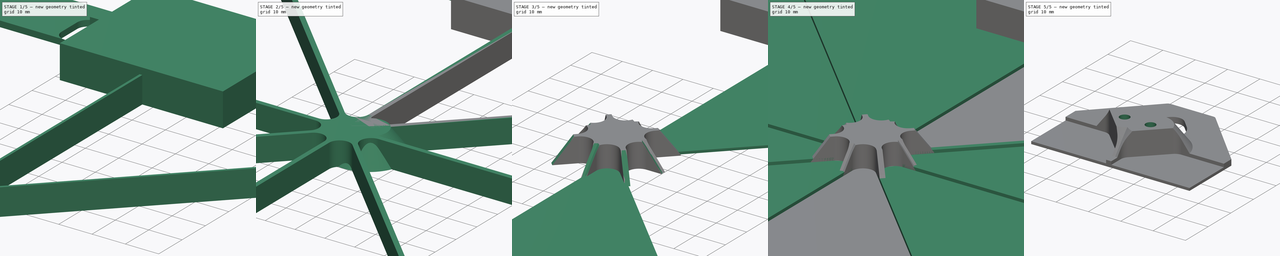
[diagram: build sequence overview — one tinted view per stage of 5, left to right]
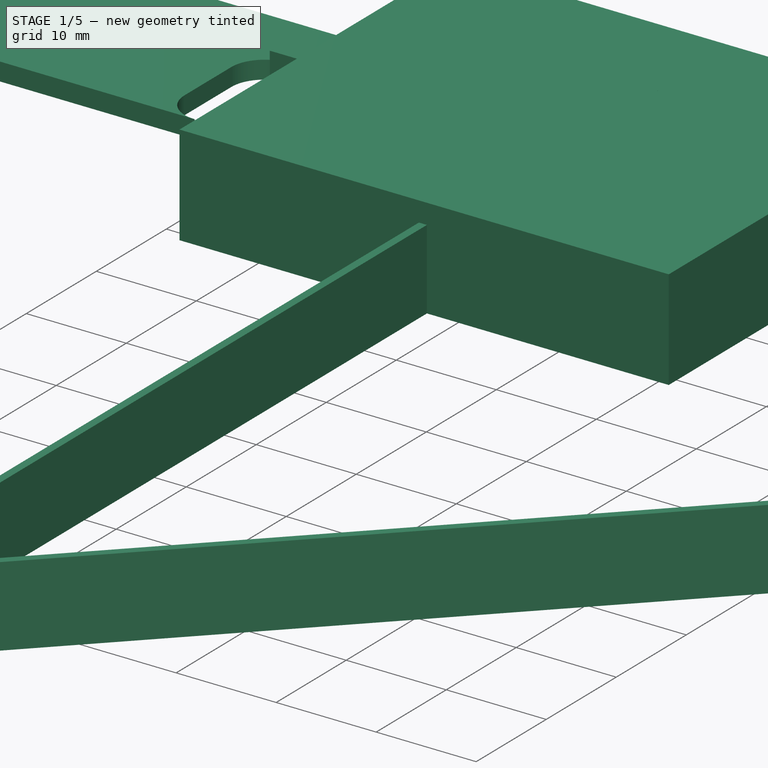
[diagram: stage 1 of 5 — iso view after this stage's code; geometry added in this stage tinted green]
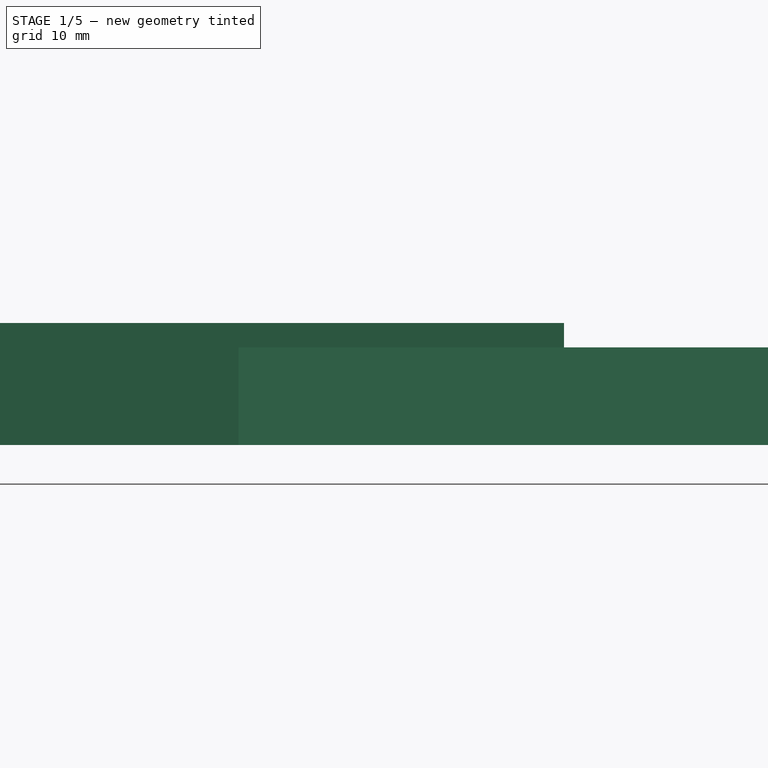
[diagram: stage 1 of 5 — front view after this stage's code; geometry added in this stage tinted green]
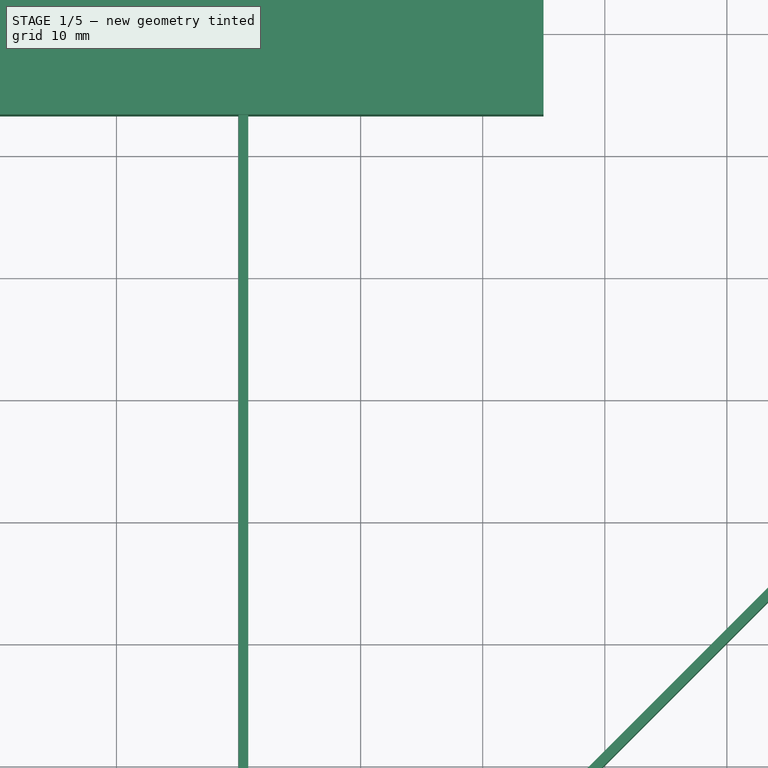
[diagram: stage 1 of 5 — top view after this stage's code; geometry added in this stage tinted green]
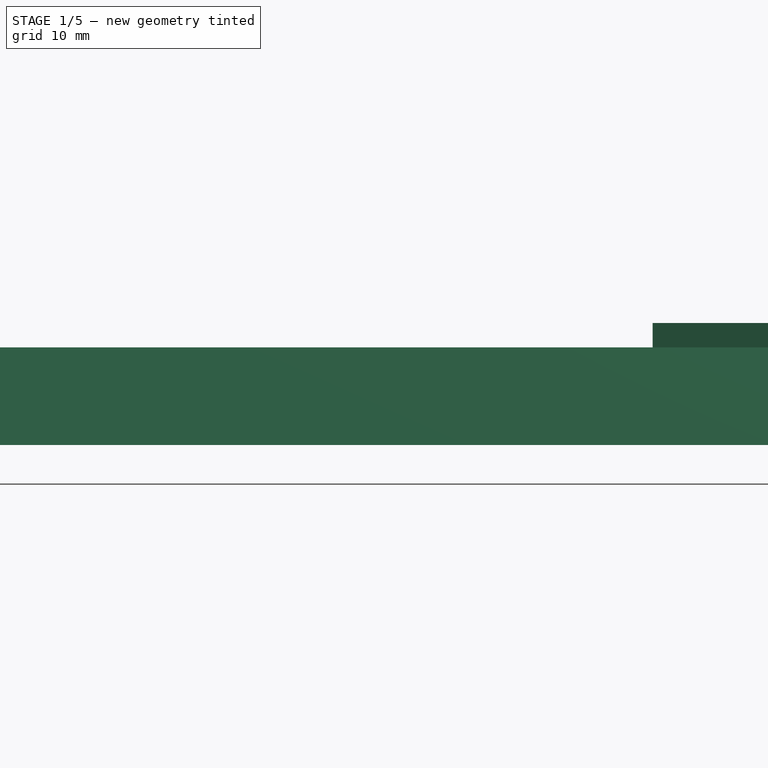
[diagram: stage 1 of 5 — right view after this stage's code; geometry added in this stage tinted green]
FCSTD DOCUMENT  (FreeCAD 0.20R29177 +426 (Git))
Label: frame_2x2
License: All rights reserved
LicenseURL: http://en.wikipedia.org/wiki/All_rights_reserved
objects: Part::FeaturePython×7, Part::Extrusion×7, Part::MultiFuse×6, Sketcher::SketchObject×5, Part::Mirroring×4, Part::MultiCommon×2, Spreadsheet::Sheet×1, Part::Cone×1, Part::Cylinder×1, Part::Fuse×1, Part::Cut×1
note: 34 computed .brp shape members not serialized (recipe doc carries the construction recipe); baked Part::Feature solids carry a one-line shape summary decoded from their .brp

FEATURE [Part::Extrusion] Extrude001
  Base = -> Sketch
  Dir = (0,0,1)
  DirMode = 2
  FaceMakerClass = Part::FaceMakerBullseye
  LengthFwd = 8
  LengthRev = 0
  Solid = true
  Symmetric = false
  expr: LengthFwd = Spreadsheet.hole_z
FEATURE [Sketcher::SketchObject] Sketch002
  FullyConstrained = false
  MapMode = 45
  expr: Constraints[6] = Spreadsheet.item_outline_y
  expr: Constraints[9] = Spreadsheet.top_hook_y
  sketch-geometry (13):
    g0: LineSegment StartX=26.6549 StartY=100 StartZ=0 EndX=7.55518 EndY=119.596 EndZ=0
    g1: LineSegment StartX=-7.55518 StartY=119.596 StartZ=0 EndX=-26.6549 EndY=100 EndZ=0
    g2: LineSegment StartX=-26.6549 StartY=100 StartZ=0 EndX=0 EndY=100 EndZ=0
    g3: LineSegment StartX=0 StartY=100 StartZ=0 EndX=26.6549 EndY=100 EndZ=0
    g4: LineSegment StartX=0 StartY=120 StartZ=0 EndX=0 EndY=100 EndZ=0
    g5: LineSegment StartX=-6.59708 StartY=120 StartZ=0 EndX=0 EndY=120 EndZ=0
    g6: LineSegment StartX=6.59708 StartY=120 StartZ=0 EndX=0 EndY=120 EndZ=0
    g7: ArcOfCircle CenterX=0 CenterY=106.5 CenterZ=0 NormalX=0 NormalY=0 NormalZ=1 AngleXU=0 Radius=6.5 StartAngle=2.36902 EndAngle=7.05576
    g8: LineSegment StartX=-4.65475 StartY=111.037 StartZ=0 EndX=-2.29464 EndY=113.458 EndZ=0
    g9: LineSegment StartX=2.29464 StartY=113.458 StartZ=0 EndX=4.65475 EndY=111.037 EndZ=0
    g10: ArcOfCircle CenterX=0 CenterY=111.222 CenterZ=0 NormalX=0 NormalY=0 NormalZ=1 AngleXU=0 Radius=3.20429 StartAngle=0.772576 EndAngle=2.36902
    g11: ArcOfCircle CenterX=-6.59708 CenterY=118.662 CenterZ=0 NormalX=0 NormalY=0 NormalZ=1 AngleXU=0 Radius=1.33791 StartAngle=1.5708 EndAngle=2.36902
    g12: ArcOfCircle CenterX=6.59708 CenterY=118.662 CenterZ=0 NormalX=0 NormalY=0 NormalZ=1 AngleXU=0 Radius=1.33791 StartAngle=0.772576 EndAngle=1.5708
  constraints (30):
    c: Coincident(g3,g0)
    c: Coincident(g1,g2)
    c: Coincident(g2,g3)
    c: Horizontal(g2)
    c: Horizontal(g3)
    c: PointOnObject(g2,g-2)
    c: DistanceY(g-1,g2) = 100
    c: Coincident(g4,g2)
    c: Vertical(g4)
    c: DistanceY(g4,g4) = 20
    c: Equal(g0,g1)
    c: Horizontal(g5)
    c: Coincident(g5,g4)
    c: Coincident(g6,g5)
    c: Horizontal(g6)
    c: Equal(g5,g6)
    c: PointOnObject(g7,g4)
    c: Diameter(g7) = 13
    c: Tangent(g7,g3)
    c: Tangent(g7,g8) = 1.5708
    c: Tangent(g9,g7) = 1.5708
    c: Tangent(g8,g10) = 1.5708
    c: Tangent(g9,g10) = 1.5708
    c: PointOnObject(g10,g4)
    c: Tangent(g1,g11) = -1.5708
    c: Tangent(g5,g11) = 1.5708
    c: Tangent(g0,g12) = -1.5708
    c: Tangent(g6,g12) = -1.5708
    c: Equal(g11,g12)
    c: Parallel(g0,g9)
FEATURE [Part::Extrusion] Extrude004  label="hook_zone"
  Base = -> Sketch002
  Dir = (0,0,1)
  DirMode = 2
  FaceMakerClass = Part::FaceMakerBullseye
  LengthFwd = 10
  LengthRev = 0
  Solid = true
  Symmetric = false
FEATURE [Sketcher::SketchObject] Sketch003
  FullyConstrained = false
  sketch-geometry (4):
    g0: LineSegment StartX=-23.9428 StartY=122.461 StartZ=0 EndX=24.9797 EndY=122.461 EndZ=0
    g1: LineSegment StartX=24.9797 StartY=122.461 StartZ=0 EndX=24.9797 EndY=83.235 EndZ=0
    g2: LineSegment StartX=24.9797 StartY=83.235 StartZ=0 EndX=-23.9428 EndY=83.235 EndZ=0
    g3: LineSegment StartX=-23.9428 StartY=83.235 StartZ=0 EndX=-23.9428 EndY=122.461 EndZ=0
  constraints (8):
    c: Coincident(g0,g1)
    c: Coincident(g1,g2)
    c: Coincident(g2,g3)
    c: Coincident(g3,g0)
    c: Horizontal(g0)
    c: Horizontal(g2)
    c: Vertical(g1)
    c: Vertical(g3)
FEATURE [Part::Extrusion] Extrude005  label="test_zone"
  Base = -> Sketch003
  Dir = (0,0,1)
  DirMode = 2
  FaceMakerClass = Part::FaceMakerBullseye
  LengthFwd = 10
  LengthRev = 0
  Solid = true
  Symmetric = false
FEATURE [Sketcher::SketchObject] Sketch004  label="cable_hook_arc"
  FullyConstrained = true
  MapMode = 45
  expr: Constraints[12] = Spreadsheet.item_outline_x / 2
  expr: Constraints[1] = Spreadsheet.top_hook_y
  expr: Constraints[24] = Spreadsheet.top_hook_y * 2 / 3
  expr: Constraints[32] = Spreadsheet.item_outline_x / 4
  expr: Constraints[33] = Spreadsheet.item_outline_x / 8
  expr: Constraints[8] = Spreadsheet.item_outline_y
  expr: Constraints[9] = Spreadsheet.item_outline_x
  sketch-geometry (12):
    g0: LineSegment StartX=-65.8333 StartY=100 StartZ=0 EndX=-50 EndY=100 EndZ=0
    g1: LineSegment StartX=-71.6667 StartY=120 StartZ=0 EndX=-50 EndY=120 EndZ=0
    g2: LineSegment StartX=0 StartY=100 StartZ=0 EndX=-100 EndY=100 EndZ=0
    g3: LineSegment StartX=-100 StartY=100 StartZ=0 EndX=-100 EndY=0 EndZ=0
    g4: LineSegment StartX=-65.8333 StartY=113.333 StartZ=0 EndX=-71.6667 EndY=113.333 EndZ=0
    g5: LineSegment StartX=-50 StartY=100 StartZ=0 EndX=-50 EndY=120 EndZ=0
    g6: ArcOfCircle CenterX=-65.8333 CenterY=110 CenterZ=0 NormalX=0 NormalY=0 NormalZ=1 AngleXU=0 Radius=3.33333 StartAngle=4e-16 EndAngle=1.5708
    g7: ArcOfCircle CenterX=-71.6667 CenterY=116.667 CenterZ=0 NormalX=0 NormalY=0 NormalZ=1 AngleXU=0 Radius=3.33333 StartAngle=1.5708 EndAngle=4.71239
    g8: ArcOfCircle CenterX=-65.8333 CenterY=103.333 CenterZ=0 NormalX=0 NormalY=0 NormalZ=1 AngleXU=0 Radius=3.33333 StartAngle=4.71239 EndAngle=6.28319
    g9: LineSegment StartX=-62.5 StartY=103.333 StartZ=0 EndX=-62.5 EndY=110 EndZ=0
    g10: LineSegment StartX=-71.6667 StartY=120 StartZ=0 EndX=-75 EndY=120 EndZ=0
    g11: LineSegment StartX=-75 StartY=120 StartZ=0 EndX=-75 EndY=100 EndZ=0
  constraints (34):
    c: Horizontal(g0)
    c: DistanceY(g0,g1) = 20
    c: Horizontal(g1)
    c: PointOnObject(g2,g-2)
    c: Horizontal(g2)
    c: Coincident(g2,g3)
    c: PointOnObject(g3,g-1)
    c: Vertical(g3)
    c: DistanceY(g3,g3) = 100
    c: DistanceX(g2,g2) = 100
    c: PointOnObject(g0,g2)
    c: Horizontal(g4)
    c: DistanceX(g0,g2) = 50
    c: Coincident(g5,g0)
    c: Coincident(g5,g1)
    c: Vertical(g5)
    c: Tangent(g9,g6) = -1.5708
    c: Tangent(g4,g6) = -1.5708
    c: Tangent(g4,g7) = 1.5708
    c: Equal(g7,g6)
    c: Vertical(g9)
    c: Tangent(g9,g8) = -1.5708
    c: Tangent(g8,g0) = -1.5708
    c: Equal(g6,g8)
    c: DistanceY(g0,g4) = 13.3333
    c: Tangent(g7,g1) = 1.5708
    c: Coincident(g10,g1)
    c: Horizontal(g10)
    c: Coincident(g11,g10)
    c: PointOnObject(g11,g2)
    c: Vertical(g11)
    c: Tangent(g11,g7)
    c: DistanceX(g10,g1) = 25
    c: DistanceX(g6,g1) = 12.5
FEATURE [Part::Extrusion] Extrude006
  Base = -> Sketch004
  Dir = (0,0,1)
  DirMode = 2
  FaceMakerClass = Part::FaceMakerBullseye
  LengthFwd = 1.8
  LengthRev = 0
  Solid = true
  Symmetric = false
  expr: LengthFwd = Spreadsheet.top_hook_thickness
FEATURE [Part::Mirroring] Part__Mirroring003  label="Extrude006 (Mirror #4)"
  Base = (-50,0,0)
  Normal = (1,0,0)
  Source = -> Extrude006
  expr: .Base.x = -Spreadsheet.item_outline_x / 2
FEATURE [Part::MultiFuse] Fusion006  label="cable_hook"
  Shapes = -> [Extrude006,Part__Mirroring003]
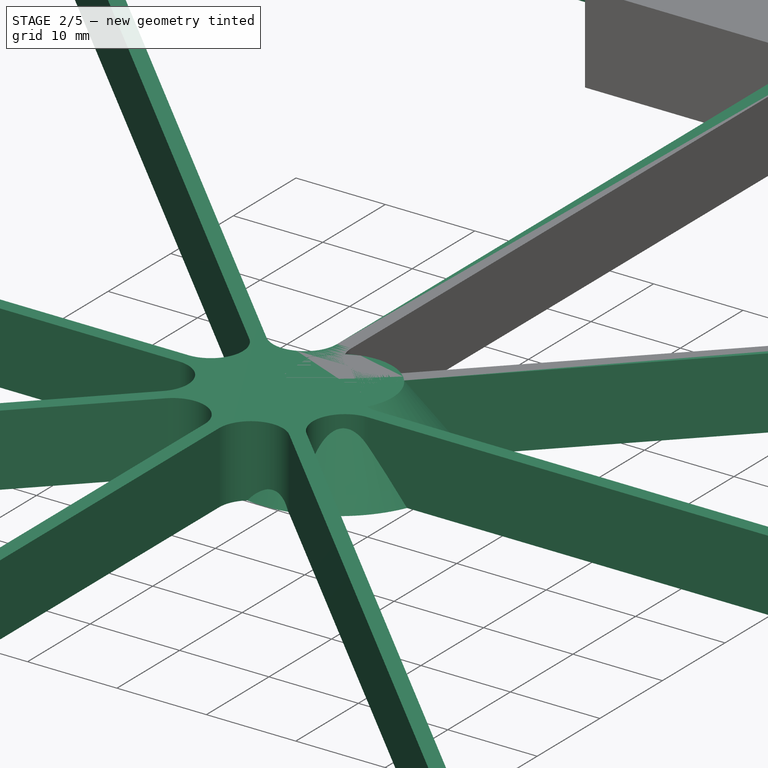
[diagram: stage 2 of 5 — iso view after this stage's code; geometry added in this stage tinted green]
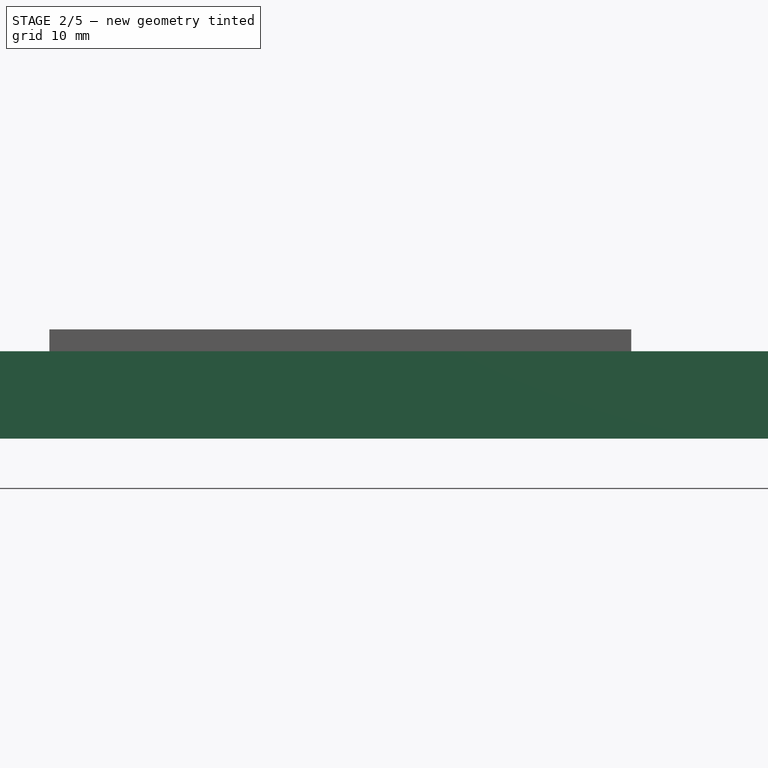
[diagram: stage 2 of 5 — front view after this stage's code; geometry added in this stage tinted green]
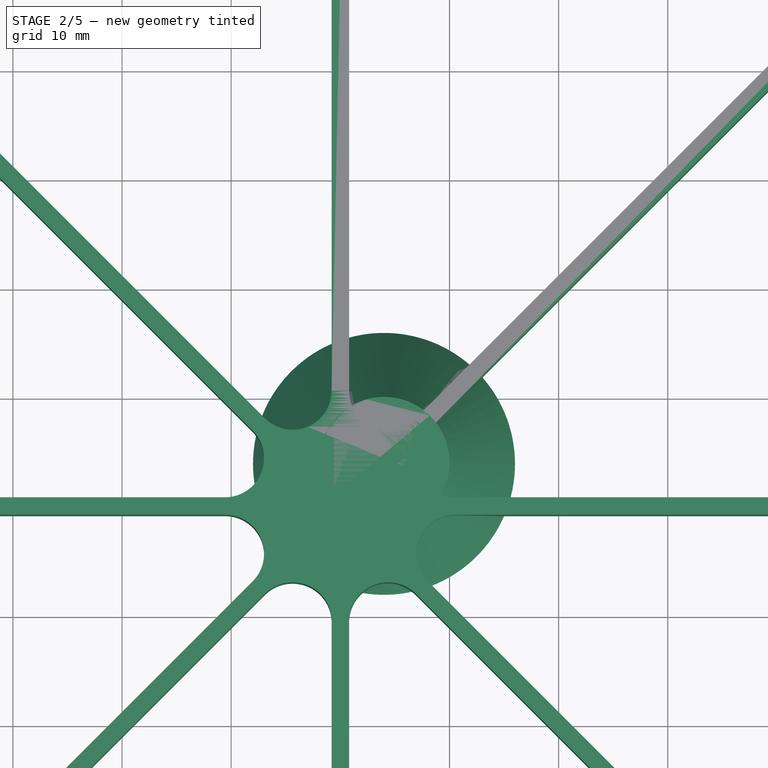
[diagram: stage 2 of 5 — top view after this stage's code; geometry added in this stage tinted green]
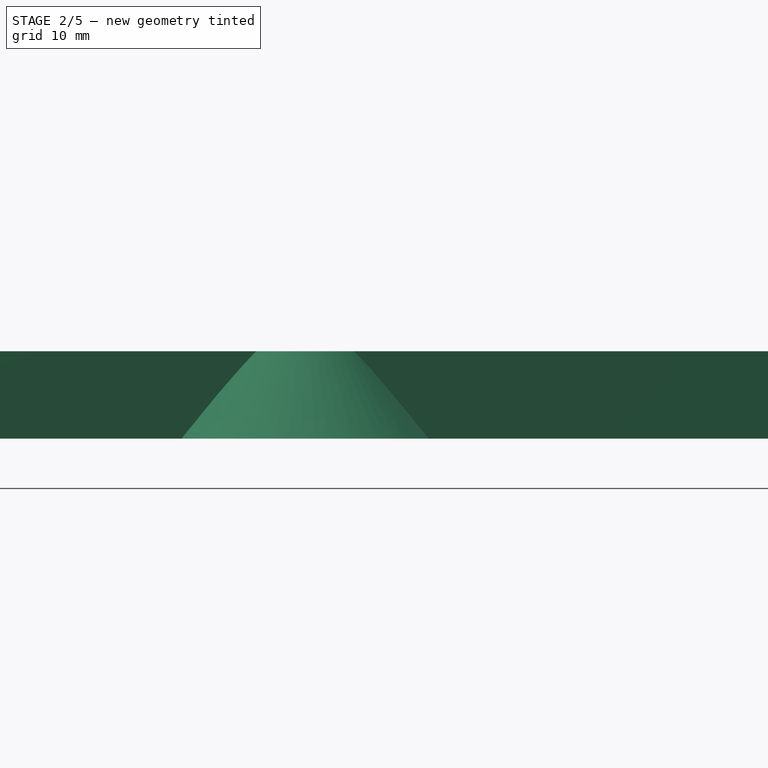
[diagram: stage 2 of 5 — right view after this stage's code; geometry added in this stage tinted green]
FEATURE [Spreadsheet::Sheet] Spreadsheet
  cells = A1=item_outline_x; B1(item_outline_x)=100; A2=item_outline_y; B2(item_outline_y)=100; A3=outline_to_hole_x; B3(outline_to_hole_x)=4; A4=outline_to_hole_y; B4(outline_to_hole_y)=4; A5=corner_r; B5(corner_r)=4; A6=bottom_plate_thickness; B6(bottom_plate_thickness)=0.8; A7=frame_height; B7(frame_height)=1; A8=frame_width; B8(frame_width)=1.6; A9=hole_2r; B9(hole_2r)=3; A10=hole_screw_head_2r; B10(hole_screw_head_2r)=6; A11=hole_z; B11(hole_z)=8; A12=top_hook_y; B12(top_hook_y)=20; A13=top_hook_hole_2r; B13(top_hook_hole_2r)=13; A14=top_hook_thickness; B14(top_hook_thickness)==bottom_plate_thickness + frame_height
FEATURE [Part::Cone] Cone  label="円錐"
  Angle = 360
  AttacherType = Attacher::AttachEngine3D
  Height = 8
  Placement = pos=(4,4,0) rot=(0,0,1;0rad)
  Radius1 = 12
  Radius2 = 6
  expr: .Placement.Base.x = Spreadsheet.outline_to_hole_x
  expr: .Placement.Base.y = Spreadsheet.outline_to_hole_y
  expr: Height = Spreadsheet.hole_z
  expr: Radius1 = Spreadsheet.hole_screw_head_2r * 2
  expr: Radius2 = Spreadsheet.hole_screw_head_2r
FEATURE [Part::FeaturePython] Array  # Draft array (typed FeaturePython)
  AlwaysSyncPlacement = false
  Angle = 360
  ArrayType = 1
  Axis = (0,0,1)
  Base = -> Cone
  Center = (50,50,0)
  Count = 4
  ExpandArray = false
  Fuse = false
  IntervalAxis = (0,0,0)
  IntervalX = (50,0,0)
  IntervalY = (0,50,0)
  IntervalZ = (0,0,50)
  NumberCircles = 3
  NumberPolar = 4
  NumberX = 2
  NumberY = 2
  NumberZ = 1
  PlacementList = 4 placements: [(4,4,0),(96,4,0),(96,96,0),(4,96,0)]
  RadialDistance = 50
  ScaleList = (4) [(1,1,1),(1,1,1),(1,1,1),(1,1,1)]
  Symmetry = 1
  TangentialDistance = 25
  expr: .Center.x = Spreadsheet.item_outline_x / 2
  expr: .Center.y = Spreadsheet.item_outline_y / 2
FEATURE [Part::Mirroring] Part__Mirroring001  label="Extrude (Mirror #1)001"
  Base = (0,0,0)
  Normal = (0,1,0)
  Source = -> Extrude001
FEATURE [Part::MultiFuse] Fusion001
  Shapes = -> [Part__Mirroring001,Extrude001]
FEATURE [Part::FeaturePython] Array005  label="frame_zone"  # Draft array (typed FeaturePython)
  AlwaysSyncPlacement = false
  Angle = 360
  ArrayType = 1
  Axis = (0,0,1)
  Base = -> Fusion001
  Center = (0,0,0)
  Count = 4
  ExpandArray = false
  Fuse = true
  IntervalAxis = (0,0,0)
  IntervalX = (50,0,0)
  IntervalY = (0,50,0)
  IntervalZ = (0,0,50)
  NumberCircles = 3
  NumberPolar = 4
  NumberX = 2
  NumberY = 2
  NumberZ = 1
  PlacementList = 4 placements: [(0,0,0),(0,0,0),(0,0,0),(0,0,0)]
  RadialDistance = 50
  ScaleList = (4) [(1,1,1),(1,1,1),(1,1,1),(1,1,1)]
  Symmetry = 1
  TangentialDistance = 25
FEATURE [Part::Fuse] Fusion004  label="zone_to_cut"
  Base = -> Array005
  Tool = -> Extrude004
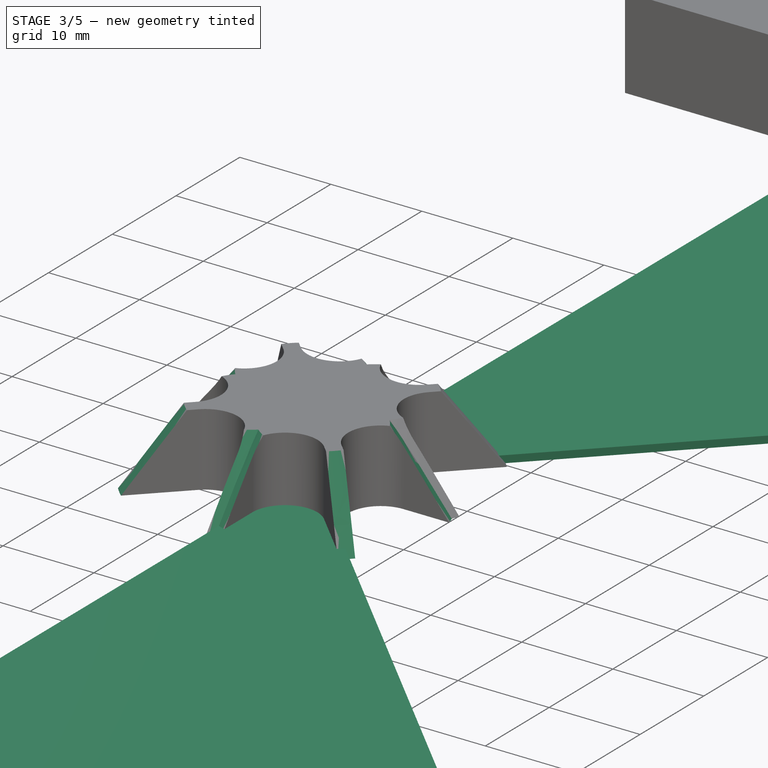
[diagram: stage 3 of 5 — iso view after this stage's code; geometry added in this stage tinted green]
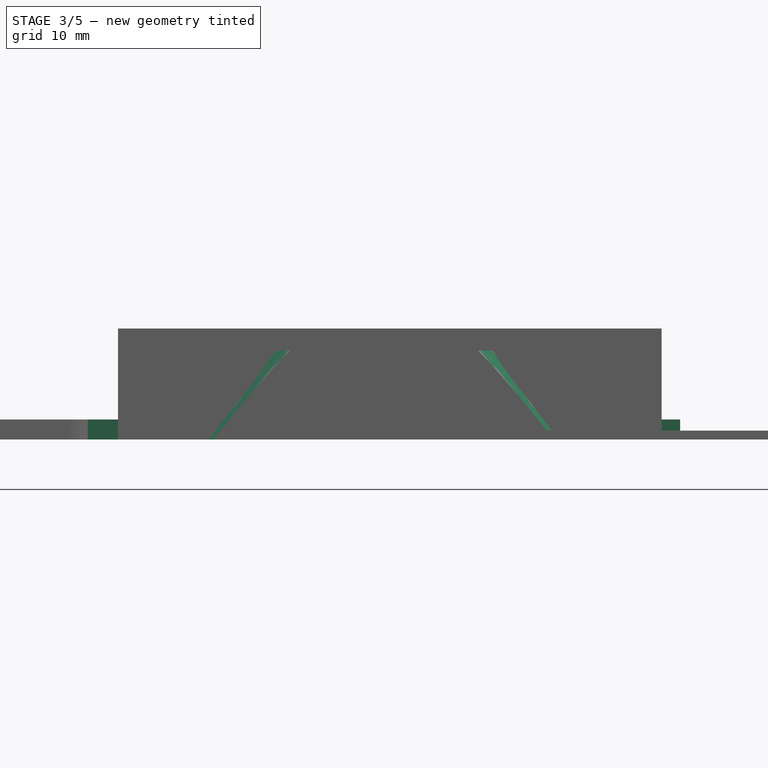
[diagram: stage 3 of 5 — front view after this stage's code; geometry added in this stage tinted green]
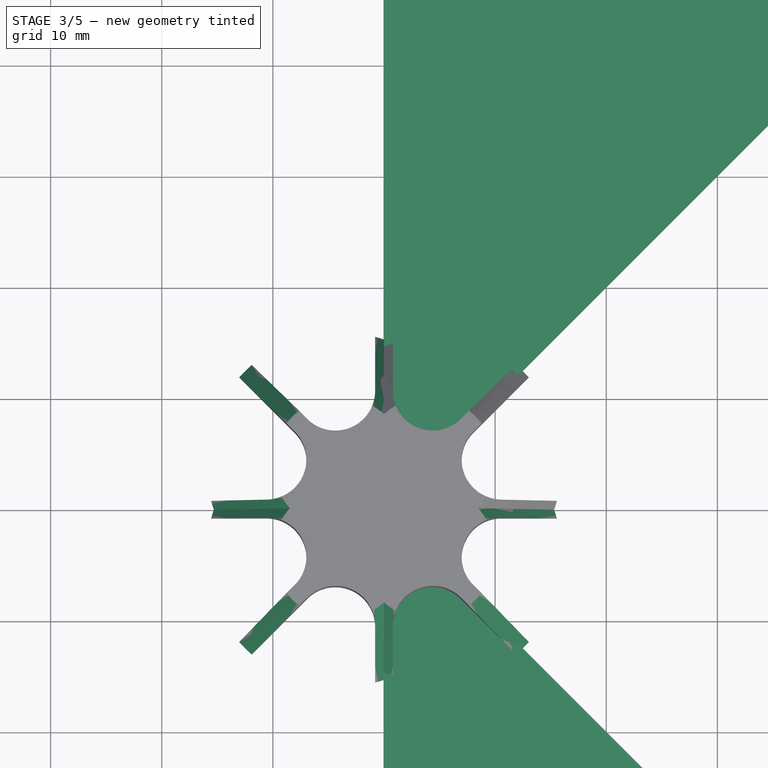
[diagram: stage 3 of 5 — top view after this stage's code; geometry added in this stage tinted green]
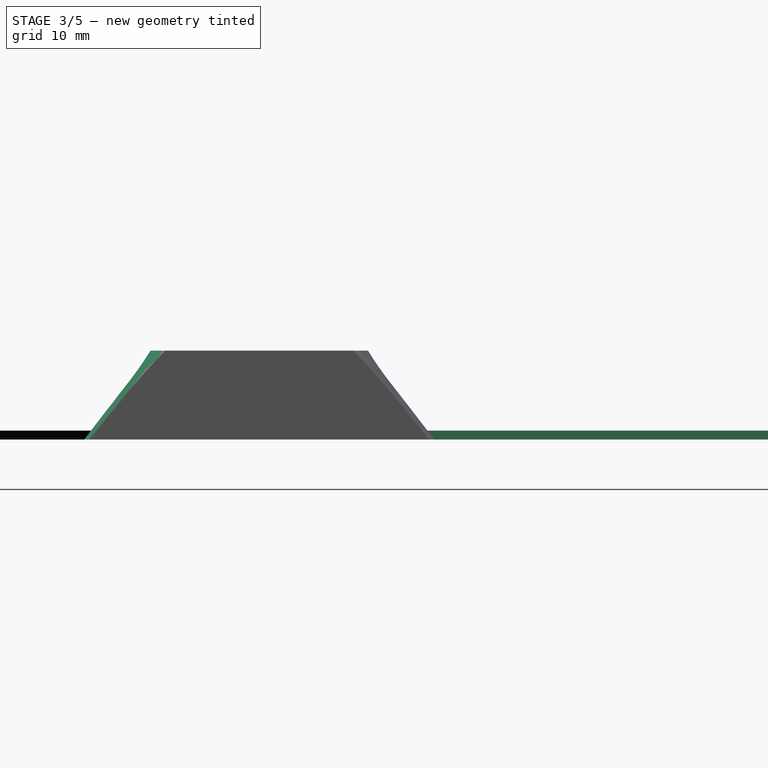
[diagram: stage 3 of 5 — right view after this stage's code; geometry added in this stage tinted green]
FEATURE [Part::FeaturePython] Array003  label="mounts"  # Draft array (typed FeaturePython)
  AlwaysSyncPlacement = false
  Angle = 360
  ArrayType = 1
  Axis = (0,0,1)
  Base = -> Array
  Center = (0,0,0)
  Count = 4
  ExpandArray = false
  Fuse = true
  IntervalAxis = (0,0,0)
  IntervalX = (50,0,0)
  IntervalY = (0,50,0)
  IntervalZ = (0,0,50)
  NumberCircles = 3
  NumberPolar = 4
  NumberX = 2
  NumberY = 2
  NumberZ = 1
  PlacementList = 4 placements: [(0,0,0),(0,0,0),(0,0,0),(0,0,0)]
  RadialDistance = 50
  ScaleList = (4) [(1,1,1),(1,1,1),(1,1,1),(1,1,1)]
  Symmetry = 1
  TangentialDistance = 25
FEATURE [Sketcher::SketchObject] Sketch001
  FullyConstrained = false
  expr: Constraints[11] = Spreadsheet.corner_r
  expr: Constraints[12] = Spreadsheet.item_outline_x
  expr: Constraints[13] = Spreadsheet.item_outline_y
  expr: Constraints[14] = Spreadsheet.outline_to_hole_x
  expr: Constraints[15] = Spreadsheet.outline_to_hole_y
  expr: Constraints[16] = Spreadsheet.hole_screw_head_2r
  expr: Constraints[34] = Spreadsheet.outline_to_hole_x
  expr: Constraints[35] = Spreadsheet.outline_to_hole_y
  expr: Constraints[43] = Spreadsheet.frame_width / 2
  expr: Constraints[44] = Spreadsheet.frame_width
  sketch-geometry (20):
    g0: LineSegment StartX=0 StartY=100 StartZ=0 EndX=96 EndY=100 EndZ=0
    g1: LineSegment StartX=100 StartY=96 StartZ=0 EndX=100 EndY=0 EndZ=0
    g2: LineSegment StartX=100 StartY=0 StartZ=0 EndX=0 EndY=0 EndZ=0
    g3: LineSegment StartX=0 StartY=0 StartZ=0 EndX=0 EndY=100 EndZ=0
    g4: ArcOfCircle CenterX=96 CenterY=96 CenterZ=0 NormalX=0 NormalY=0 NormalZ=1 AngleXU=0 Radius=4 StartAngle=9e-16 EndAngle=1.5708
    g5: Circle CenterX=4 CenterY=96 CenterZ=0 NormalX=0 NormalY=0 NormalZ=1 AngleXU=0 Radius=3
    g6: Circle CenterX=96 CenterY=96 CenterZ=0 NormalX=0 NormalY=0 NormalZ=1 AngleXU=0 Radius=3
    g7: Circle CenterX=96 CenterY=4 CenterZ=0 NormalX=0 NormalY=0 NormalZ=1 AngleXU=0 Radius=3
    g8: Circle CenterX=4 CenterY=4 CenterZ=0 NormalX=0 NormalY=0 NormalZ=1 AngleXU=0 Radius=3
    g9: LineSegment StartX=4 StartY=96 StartZ=0 EndX=96 EndY=96 EndZ=0
    g10: LineSegment StartX=96 StartY=96 StartZ=0 EndX=96 EndY=4 EndZ=0
    g11: LineSegment StartX=96 StartY=4 StartZ=0 EndX=4 EndY=4 EndZ=0
    g12: LineSegment StartX=4 StartY=4 StartZ=0 EndX=4 EndY=96 EndZ=0
    g13: LineSegment StartX=4 StartY=4 StartZ=0 EndX=96 EndY=96 EndZ=0
    g14: LineSegment StartX=92.1519 StartY=93.2833 StartZ=0 EndX=92.7176 EndY=92.7176 EndZ=0
    g15: LineSegment StartX=0.8 StartY=87.3147 StartZ=0 EndX=0 EndY=87.3147 EndZ=0
    g16: LineSegment StartX=90.0325 StartY=98.4 StartZ=0 EndX=90.0325 EndY=100 EndZ=0
    g17: LineSegment StartX=96 StartY=96 StartZ=0 EndX=98.8284 EndY=98.8284 EndZ=0
    g18: LineSegment StartX=0 StartY=0 StartZ=0 EndX=4 EndY=4 EndZ=0
    g19: ArcOfCircle CenterX=96 CenterY=96 CenterZ=0 NormalX=0 NormalY=0 NormalZ=1 AngleXU=0 Radius=4 StartAngle=0.785398 EndAngle=1.5708
  constraints (52):
    c: Coincident(g1,g2)
    c: Coincident(g2,g3)
    c: Coincident(g3,g0)
    c: Horizontal(g0)
    c: Horizontal(g2)
    c: Vertical(g1)
    c: Vertical(g3)
    c: PointOnObject(g0,g-2)
    c: PointOnObject(g1,g-1)
    c: Tangent(g0,g4) = 1.5708
    c: Tangent(g1,g4) = 1.5708
    c: Radius(g4) = 4
    c: DistanceX(g2,g2) = 100
    c: DistanceY(g3,g3) = 100
    c: DistanceX(g8) = 4
    c: DistanceY(g8) = 4
    c: Diameter(g8) = 6
    c: Equal(g5,g8)
    c: Equal(g8,g7)
    c: Equal(g8,g6)
    c: Coincident(g9,g10)
    c: Coincident(g10,g11)
    c: Coincident(g11,g12)
    c: Coincident(g12,g9)
    c: Horizontal(g9)
    c: Horizontal(g11)
    c: Vertical(g10)
    c: Vertical(g12)
    c: Coincident(g9,g5)
    c: Coincident(g10,g7)
    c: Coincident(g6,g9)
    c: Coincident(g11,g8)
    c: Coincident(g13,g8)
    c: Coincident(g13,g6)
    c: DistanceX(g7,g1) = 4
    c: DistanceY(g5,g0) = 4
    c: PointOnObject(g14,g13)
    c: Perpendicular(g13,g14)
    c: PointOnObject(g15,g3)
    c: Horizontal(g15)
    c: PointOnObject(g16,g0)
    c: Vertical(g16)
    c: Equal(g15,g14)
    c: DistanceX(g15,g15) = 0.8
    c: DistanceY(g16,g16) = 1.6
    c: Coincident(g17,g4)
    c: Parallel(g17,g13)
    c: Coincident(g18,g2)
    c: Coincident(g18,g8)
    c: Coincident(g19,g13)
    c: Coincident(g19,g17)
    c: Coincident(g19,g0)
FEATURE [Part::Extrusion] Extrude002
  Base = -> Sketch001
  Dir = (0,0,1)
  DirMode = 2
  FaceMakerClass = Part::FaceMakerBullseye
  LengthFwd = 0.8
  LengthRev = 0
  Solid = true
  Symmetric = false
  expr: LengthFwd = Spreadsheet.bottom_plate_thickness
FEATURE [Part::Mirroring] Part__Mirroring002  label="Extrude (Mirror #1)002"
  Base = (0,0,0)
  Normal = (0,1,0)
  Source = -> Extrude002
FEATURE [Part::MultiFuse] Fusion003
  Shapes = -> [Part__Mirroring002,Extrude002]
FEATURE [Part::Extrusion] Extrude003  label="top_hook"
  Base = -> Sketch002
  Dir = (0,0,1)
  DirMode = 2
  FaceMakerClass = Part::FaceMakerBullseye
  LengthFwd = 1.8
  LengthRev = 0
  Solid = true
  Symmetric = false
  expr: LengthFwd = Spreadsheet.top_hook_thickness
FEATURE [Part::MultiCommon] Common001  label="mounts_aligned_for_frame"
  Shapes = -> [Array003,Fusion004]
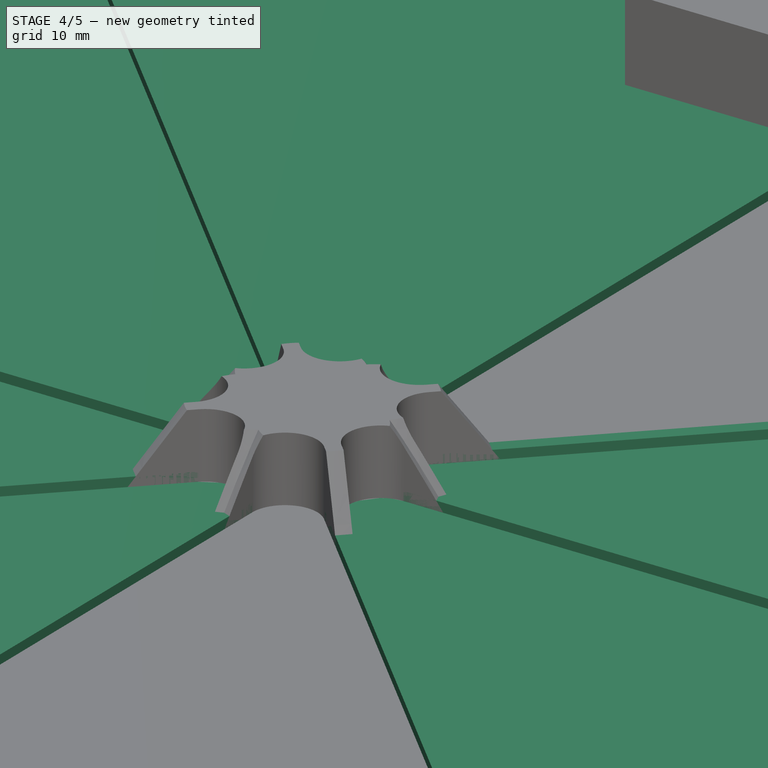
[diagram: stage 4 of 5 — iso view after this stage's code; geometry added in this stage tinted green]
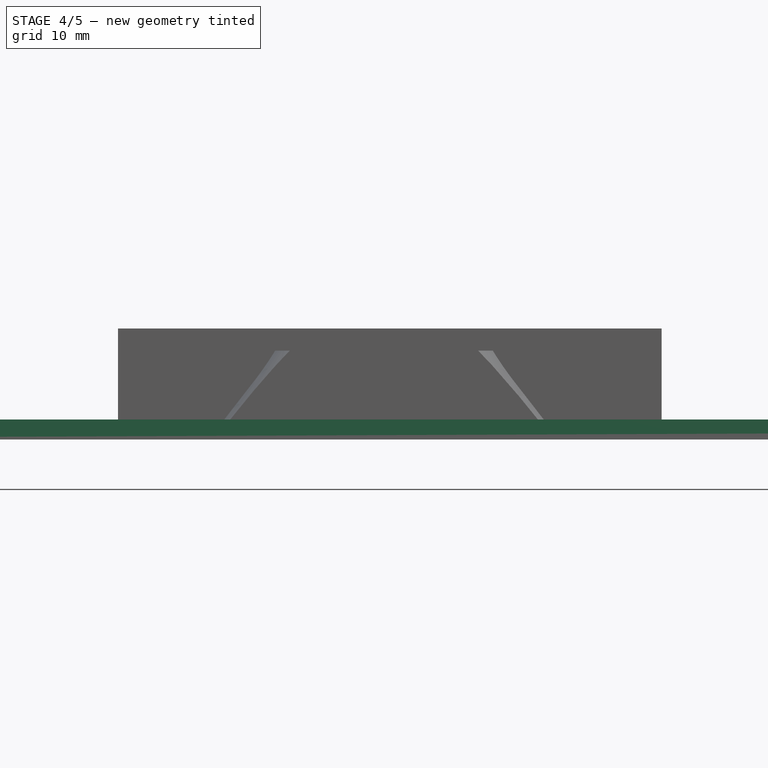
[diagram: stage 4 of 5 — front view after this stage's code; geometry added in this stage tinted green]
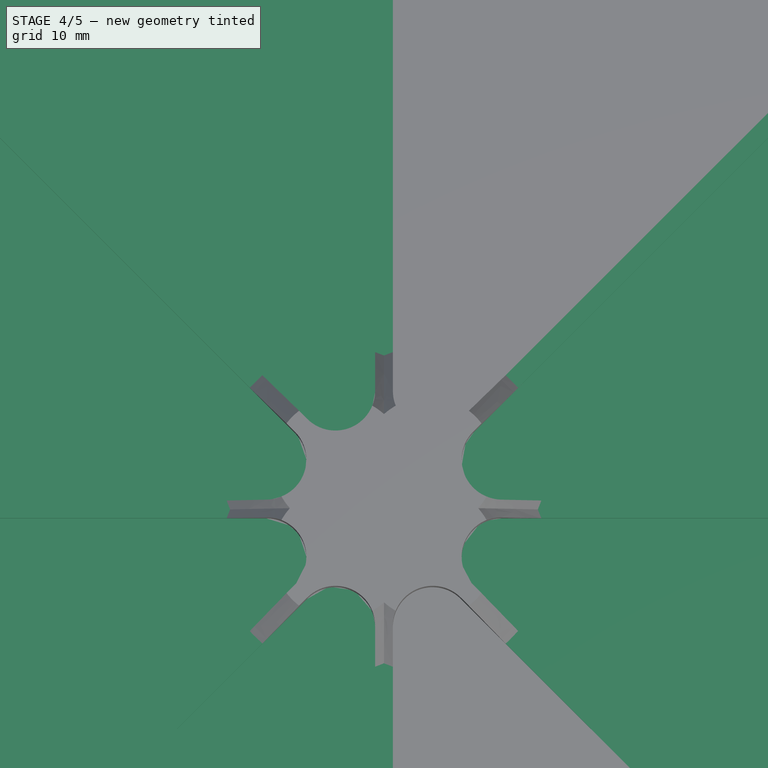
[diagram: stage 4 of 5 — top view after this stage's code; geometry added in this stage tinted green]
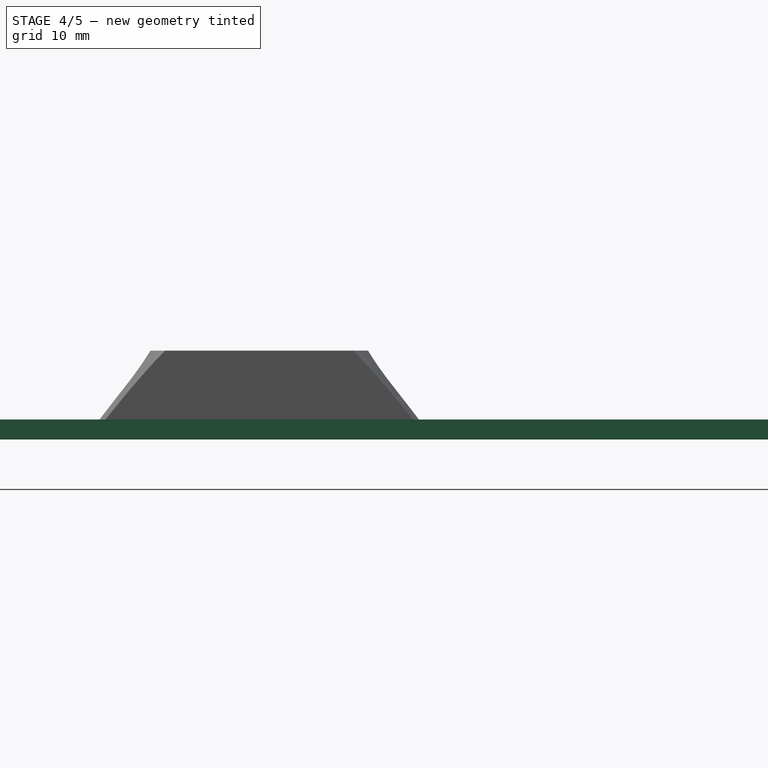
[diagram: stage 4 of 5 — right view after this stage's code; geometry added in this stage tinted green]
FEATURE [Sketcher::SketchObject] Sketch
  FullyConstrained = true
  expr: Constraints[11] = Spreadsheet.corner_r
  expr: Constraints[12] = Spreadsheet.item_outline_x
  expr: Constraints[13] = Spreadsheet.item_outline_y
  expr: Constraints[16] = Spreadsheet.outline_to_hole_x
  expr: Constraints[17] = Spreadsheet.outline_to_hole_y
  expr: Constraints[18] = Spreadsheet.hole_screw_head_2r
  expr: Constraints[36] = Spreadsheet.outline_to_hole_x
  expr: Constraints[37] = Spreadsheet.outline_to_hole_y
  expr: Constraints[52] = Spreadsheet.frame_width / 2
  expr: Constraints[53] = Spreadsheet.frame_width
  sketch-geometry (28):
    g0: LineSegment StartX=0 StartY=100 StartZ=0 EndX=96 EndY=100 EndZ=0
    g1: LineSegment StartX=100 StartY=96 StartZ=0 EndX=100 EndY=0 EndZ=0
    g2: LineSegment StartX=100 StartY=0 StartZ=0 EndX=0 EndY=0 EndZ=0
    g3: LineSegment StartX=0 StartY=0 StartZ=0 EndX=0 EndY=100 EndZ=0
    g4: ArcOfCircle CenterX=96 CenterY=96 CenterZ=0 NormalX=0 NormalY=0 NormalZ=1 AngleXU=0 Radius=4 StartAngle=9e-16 EndAngle=1.5708
    g5: LineSegment StartX=0.8 StartY=10.5657 StartZ=0 EndX=0.8 EndY=87.3147 EndZ=0
    g6: LineSegment StartX=11.8853 StartY=98.4 StartZ=0 EndX=90.0325 EndY=98.4 EndZ=0
    g7: LineSegment StartX=6.90536 StartY=8.03673 StartZ=0 EndX=92.1519 EndY=93.2833 EndZ=0
    g8: Circle CenterX=4 CenterY=96 CenterZ=0 NormalX=0 NormalY=0 NormalZ=1 AngleXU=0 Radius=3
    g9: Circle CenterX=96 CenterY=96 CenterZ=0 NormalX=0 NormalY=0 NormalZ=1 AngleXU=0 Radius=3
    g10: Circle CenterX=96 CenterY=4 CenterZ=0 NormalX=0 NormalY=0 NormalZ=1 AngleXU=0 Radius=3
    g11: Circle CenterX=4 CenterY=4 CenterZ=0 NormalX=0 NormalY=0 NormalZ=1 AngleXU=0 Radius=3
    g12: LineSegment StartX=4 StartY=96 StartZ=0 EndX=96 EndY=96 EndZ=0
    g13: LineSegment StartX=96 StartY=96 StartZ=0 EndX=96 EndY=4 EndZ=0
    g14: LineSegment StartX=96 StartY=4 StartZ=0 EndX=4 EndY=4 EndZ=0
    g15: LineSegment StartX=4 StartY=4 StartZ=0 EndX=4 EndY=96 EndZ=0
    g16: LineSegment StartX=4 StartY=4 StartZ=0 EndX=96 EndY=96 EndZ=0
    g17: LineSegment StartX=92.1519 StartY=93.2833 StartZ=0 EndX=92.7176 EndY=92.7176 EndZ=0
    g18: ArcOfCircle CenterX=4.37644 CenterY=10.5657 CenterZ=0 NormalX=0 NormalY=0 NormalZ=1 AngleXU=0 Radius=3.57644 StartAngle=3.14159 EndAngle=5.49779
    g19: ArcOfCircle CenterX=90.0325 CenterY=95.4027 CenterZ=0 NormalX=0 NormalY=0 NormalZ=1 AngleXU=0 Radius=2.99729 StartAngle=5.49779 EndAngle=7.85398
    g20: LineSegment StartX=0.8 StartY=87.3147 StartZ=0 EndX=0 EndY=87.3147 EndZ=0
    g21: LineSegment StartX=90.0325 StartY=98.4 StartZ=0 EndX=90.0325 EndY=100 EndZ=0
    g22: LineSegment StartX=9.76396 StartY=97.5213 StartZ=0 EndX=1.67868 EndY=89.436 EndZ=0
    g23: ArcOfCircle CenterX=11.8853 CenterY=95.4 CenterZ=0 NormalX=0 NormalY=0 NormalZ=1 AngleXU=0 Radius=3 StartAngle=1.5708 EndAngle=2.35619
    g24: ArcOfCircle CenterX=3.8 CenterY=87.3147 CenterZ=0 NormalX=0 NormalY=0 NormalZ=1 AngleXU=0 Radius=3 StartAngle=2.35619 EndAngle=3.14159
    g25: LineSegment StartX=96 StartY=96 StartZ=0 EndX=98.8284 EndY=98.8284 EndZ=0
    g26: LineSegment StartX=0 StartY=0 StartZ=0 EndX=4 EndY=4 EndZ=0
    g27: ArcOfCircle CenterX=96 CenterY=96 CenterZ=0 NormalX=0 NormalY=0 NormalZ=1 AngleXU=0 Radius=4 StartAngle=0.785398 EndAngle=1.5708
  constraints (72):
    c: Coincident(g1,g2)
    c: Coincident(g2,g3)
    c: Coincident(g3,g0)
    c: Horizontal(g0)
    c: Horizontal(g2)
    c: Vertical(g1)
    c: Vertical(g3)
    c: PointOnObject(g0,g-2)
    c: PointOnObject(g1,g-1)
    c: Tangent(g0,g4) = 1.5708
    c: Tangent(g1,g4) = 1.5708
    c: Radius(g4) = 4
    c: DistanceX(g2,g2) = 100
    c: DistanceY(g3,g3) = 100
    c: Vertical(g5)
    c: Horizontal(g6)
    c: DistanceX(g11) = 4
    c: DistanceY(g11) = 4
    c: Diameter(g11) = 6
    c: Equal(g8,g11)
    c: Equal(g11,g10)
    c: Equal(g11,g9)
    c: Coincident(g12,g13)
    c: Coincident(g13,g14)
    c: Coincident(g14,g15)
    c: Coincident(g15,g12)
    c: Horizontal(g12)
    c: Horizontal(g14)
    c: Vertical(g13)
    c: Vertical(g15)
    c: Coincident(g12,g8)
    c: Coincident(g13,g10)
    c: Coincident(g9,g12)
    c: Coincident(g14,g11)
    c: Coincident(g16,g11)
    c: Coincident(g16,g9)
    c: DistanceX(g10,g1) = 4
    c: DistanceY(g8,g0) = 4
    c: Parallel(g7,g16)
    c: PointOnObject(g17,g16)
    c: Tangent(g5,g18) = 1.5708
    c: Tangent(g7,g18) = -1.5708
    c: Tangent(g6,g19) = 1.5708
    c: Tangent(g7,g19) = -1.5708
    c: Coincident(g17,g7)
    c: Perpendicular(g16,g17)
    c: PointOnObject(g20,g3)
    c: Horizontal(g20)
    c: Coincident(g21,g6)
    c: PointOnObject(g21,g0)
    c: Vertical(g21)
    c: Equal(g20,g17)
    c: DistanceX(g20,g20) = 0.8
    c: DistanceY(g21,g21) = 1.6
    c: Tangent(g6,g23) = 1.5708
    c: Tangent(g22,g23) = -1.5708
    c: Tangent(g5,g24) = 1.5708
    c: Tangent(g22,g24) = -1.5708
    c: Coincident(g20,g5)
    c: Equal(g24,g23)
    c: Equal(g23,g8)
    c: Angle(g22,g0) = 2.35619
    c: Tangent(g8,g22)
    c: Coincident(g25,g4)
    c: Parallel(g25,g16)
    c: Coincident(g26,g2)
    c: Coincident(g26,g11)
    c: Coincident(g27,g16)
    c: Coincident(g27,g25)
    c: Coincident(g27,g0)
    c: Tangent(g11,g18)
    c: Tangent(g9,g19)
FEATURE [Part::Extrusion] Extrude
  Base = -> Sketch
  Dir = (0,0,1)
  DirMode = 2
  FaceMakerClass = Part::FaceMakerBullseye
  LengthFwd = 1
  LengthRev = 0
  Placement = pos=(0,0,0.8) rot=(0,0,1;0rad)
  Solid = true
  Symmetric = false
  expr: .Placement.Base.z = Spreadsheet.bottom_plate_thickness
  expr: LengthFwd = Spreadsheet.frame_height
FEATURE [Part::Mirroring] Part__Mirroring  label="Extrude (Mirror #1)"
  Base = (0,0,0)
  Normal = (0,1,0)
  Source = -> Extrude
FEATURE [Part::MultiFuse] Fusion
  Shapes = -> [Part__Mirroring,Extrude]
FEATURE [Part::FeaturePython] Array002  label="frame"  # Draft array (typed FeaturePython)
  AlwaysSyncPlacement = false
  Angle = 360
  ArrayType = 1
  Axis = (0,0,1)
  Base = -> Fusion
  Center = (0,0,0)
  Count = 4
  ExpandArray = false
  Fuse = true
  IntervalAxis = (0,0,0)
  IntervalX = (50,0,0)
  IntervalY = (0,50,0)
  IntervalZ = (0,0,50)
  NumberCircles = 3
  NumberPolar = 4
  NumberX = 2
  NumberY = 2
  NumberZ = 1
  PlacementList = 4 placements: [(0,0,0),(0,0,0),(0,0,0),(0,0,0)]
  RadialDistance = 50
  ScaleList = (4) [(1,1,1),(1,1,1),(1,1,1),(1,1,1)]
  Symmetry = 1
  TangentialDistance = 25
FEATURE [Part::FeaturePython] Array006  label="bottom_plate"  # Draft array (typed FeaturePython)
  AlwaysSyncPlacement = false
  Angle = 360
  ArrayType = 1
  Axis = (0,0,1)
  Base = -> Fusion003
  Center = (0,0,0)
  Count = 4
  ExpandArray = false
  Fuse = true
  IntervalAxis = (0,0,0)
  IntervalX = (50,0,0)
  IntervalY = (0,50,0)
  IntervalZ = (0,0,50)
  NumberCircles = 3
  NumberPolar = 4
  NumberX = 2
  NumberY = 2
  NumberZ = 1
  PlacementList = 4 placements: [(0,0,0),(0,0,0),(0,0,0),(0,0,0)]
  RadialDistance = 50
  ScaleList = (4) [(1,1,1),(1,1,1),(1,1,1),(1,1,1)]
  Symmetry = 1
  TangentialDistance = 25
FEATURE [Part::MultiFuse] Fusion002
  Shapes = -> [Array002,Array006]
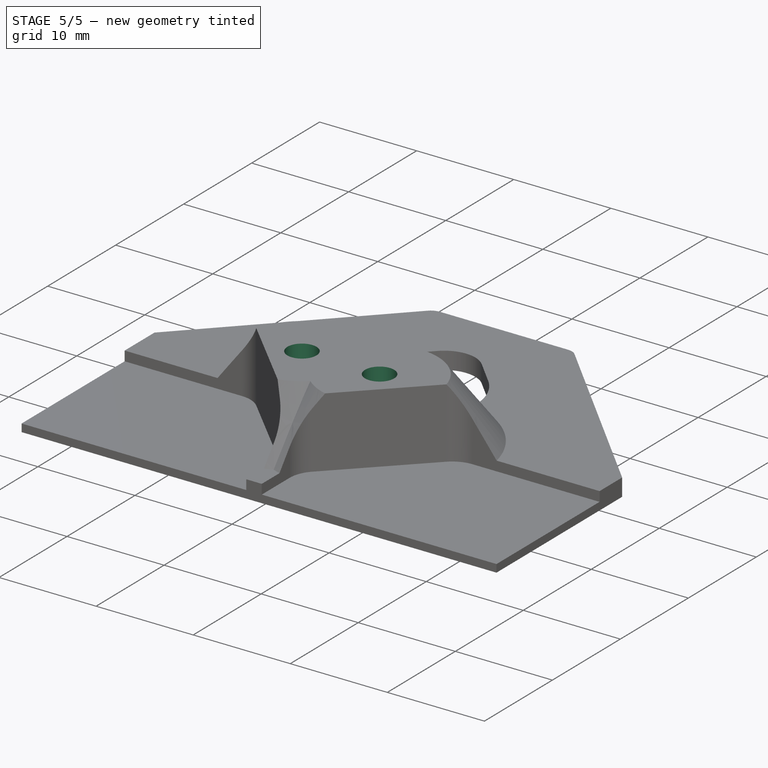
[diagram: stage 5 of 5 — iso view after this stage's code; geometry added in this stage tinted green]
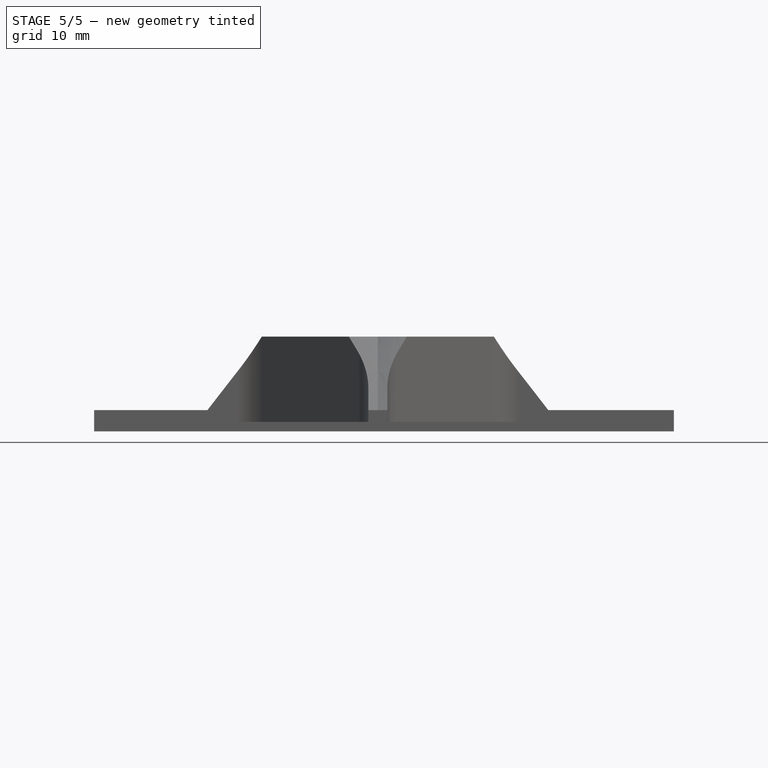
[diagram: stage 5 of 5 — front view after this stage's code; geometry added in this stage tinted green]
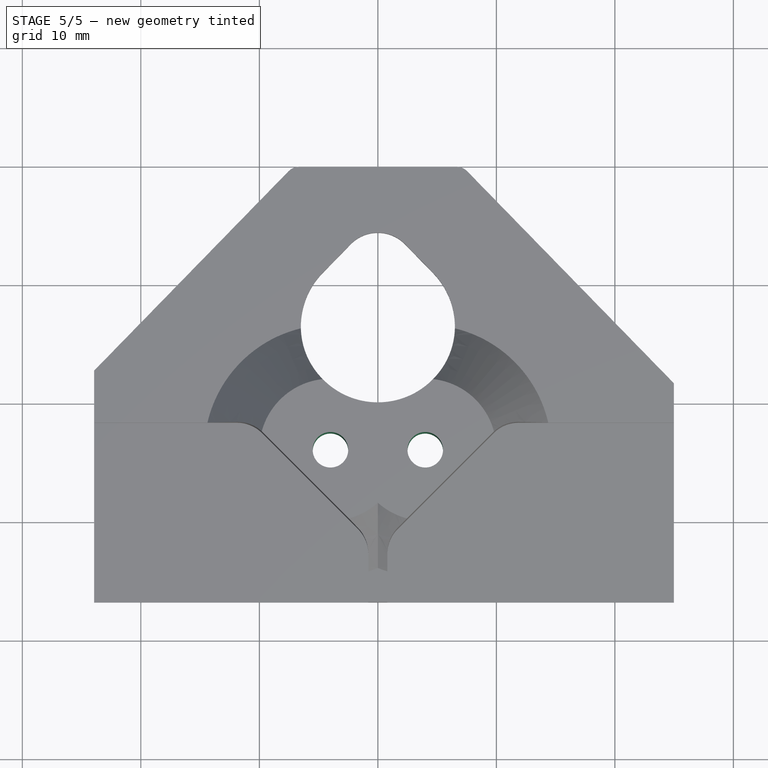
[diagram: stage 5 of 5 — top view after this stage's code; geometry added in this stage tinted green]
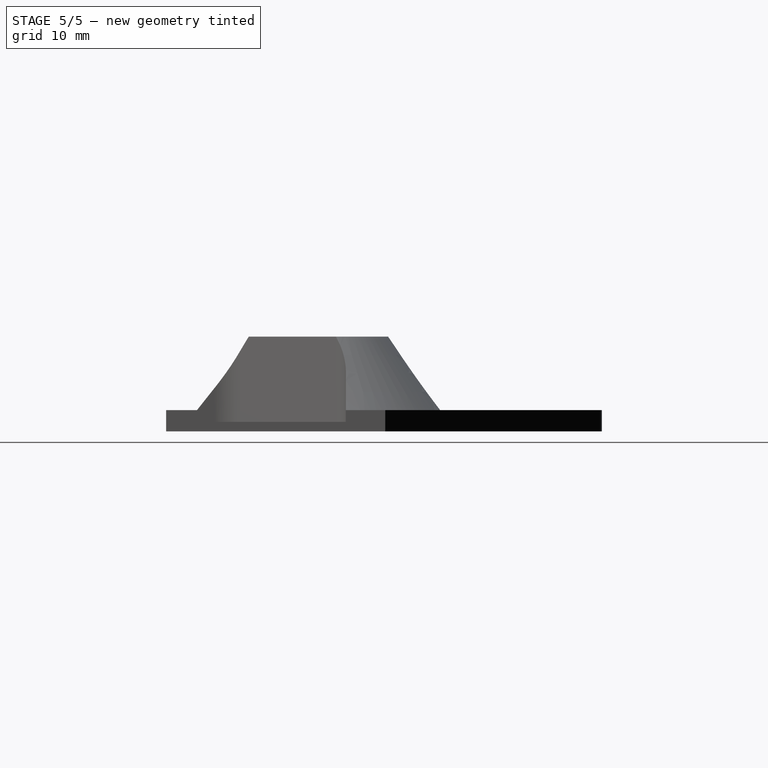
[diagram: stage 5 of 5 — right view after this stage's code; geometry added in this stage tinted green]
FEATURE [Part::Cylinder] Cylinder  label="円柱"
  Angle = 360
  AttacherType = Attacher::AttachEngine3D
  FirstAngle = 0
  Height = 8
  Placement = pos=(4,4,0) rot=(0,0,1;0rad)
  Radius = 1.5
  SecondAngle = 0
  expr: .Placement.Base.x = Spreadsheet.outline_to_hole_x
  expr: .Placement.Base.y = Spreadsheet.outline_to_hole_y
  expr: .Placement.Base.z = 0
  expr: Height = Spreadsheet.hole_z
  expr: Radius = Spreadsheet.hole_2r / 2
FEATURE [Part::FeaturePython] Array001  # Draft array (typed FeaturePython)
  AlwaysSyncPlacement = false
  Angle = 360
  ArrayType = 1
  Axis = (0,0,1)
  Base = -> Cylinder
  Center = (50,50,0)
  Count = 4
  ExpandArray = false
  Fuse = true
  IntervalAxis = (0,0,0)
  IntervalX = (50,0,0)
  IntervalY = (0,50,0)
  IntervalZ = (0,0,50)
  NumberCircles = 3
  NumberPolar = 4
  NumberX = 2
  NumberY = 2
  NumberZ = 1
  PlacementList = 4 placements: [(4,4,0),(96,4,0),(96,96,0),(4,96,0)]
  RadialDistance = 50
  ScaleList = (4) [(1,1,1),(1,1,1),(1,1,1),(1,1,1)]
  Symmetry = 1
  TangentialDistance = 25
  expr: .Center.x = Spreadsheet.item_outline_x / 2
  expr: .Center.y = Spreadsheet.item_outline_y / 2
FEATURE [Part::FeaturePython] Array004  label="holes"  # Draft array (typed FeaturePython)
  AlwaysSyncPlacement = false
  Angle = 360
  ArrayType = 1
  Axis = (0,0,1)
  Base = -> Array001
  Center = (0,0,0)
  Count = 4
  ExpandArray = false
  Fuse = true
  IntervalAxis = (0,0,0)
  IntervalX = (50,0,0)
  IntervalY = (0,50,0)
  IntervalZ = (0,0,50)
  NumberCircles = 3
  NumberPolar = 4
  NumberX = 2
  NumberY = 2
  NumberZ = 1
  PlacementList = 4 placements: [(0,0,0),(0,0,0),(0,0,0),(0,0,0)]
  RadialDistance = 50
  ScaleList = (4) [(1,1,1),(1,1,1),(1,1,1),(1,1,1)]
  Symmetry = 1
  TangentialDistance = 25
FEATURE [Part::MultiFuse] Fusion005
  Shapes = -> [Common001,Extrude003,Fusion002,Fusion006]
FEATURE [Part::Cut] Cut
  Base = -> Fusion005
  Refine = true
  Tool = -> Array004
FEATURE [Part::MultiCommon] Common  label="test_print"
  Shapes = -> [Extrude005,Cut]
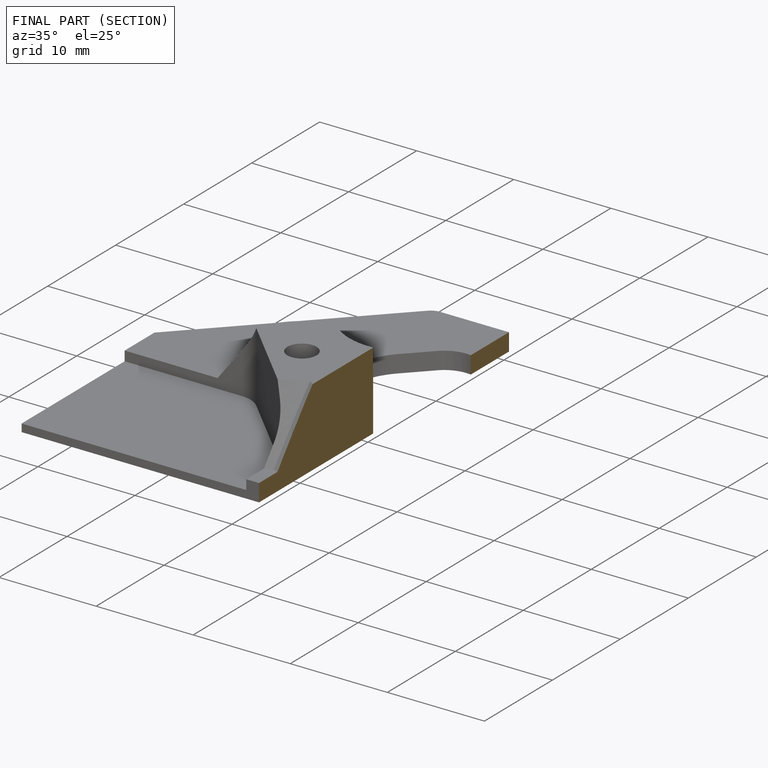
[diagram: finished part — half-section view (interior)]
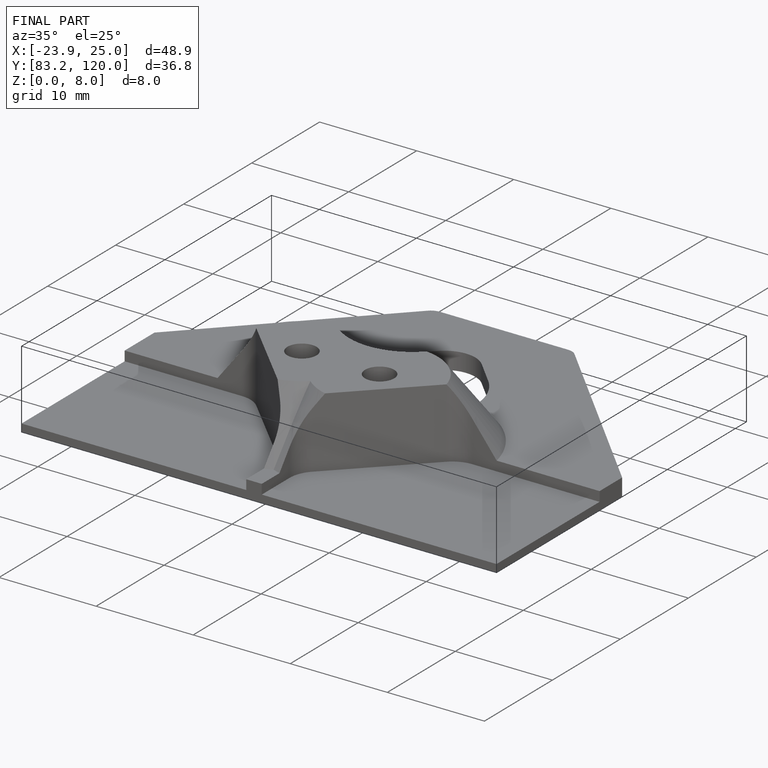
[diagram: finished part — iso view with bounding-box wireframe]
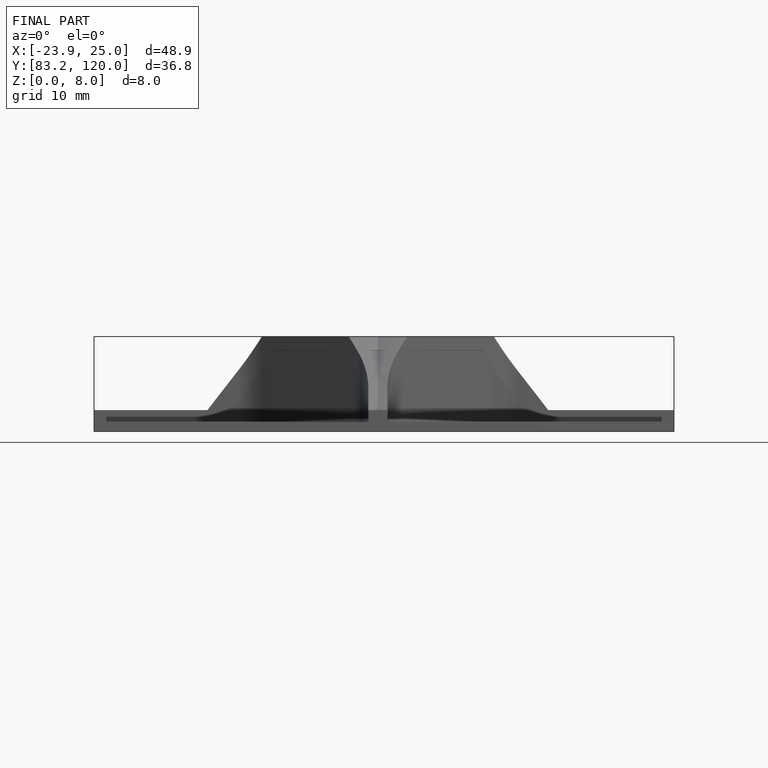
[diagram: finished part — front view with bounding-box wireframe]
